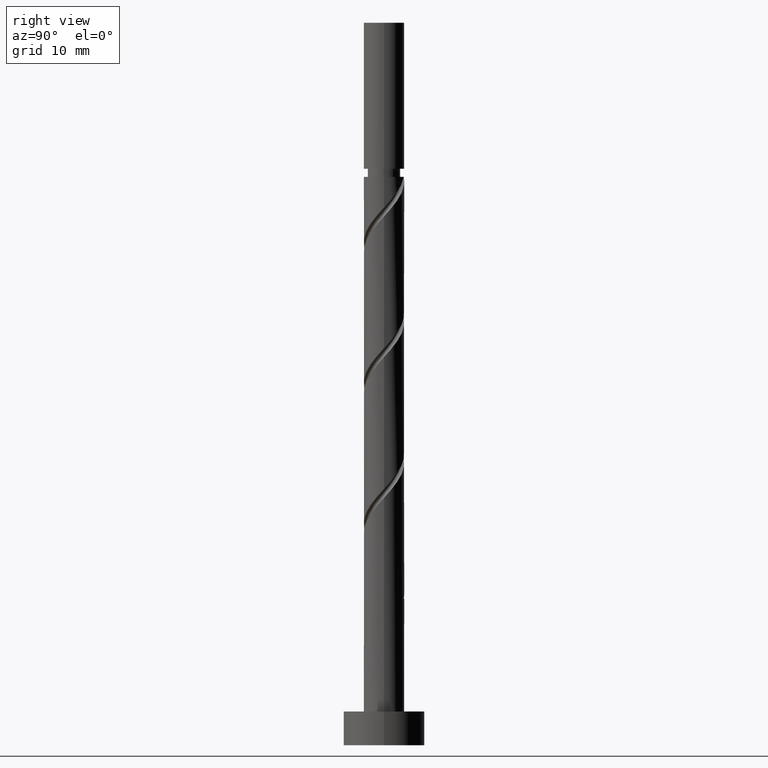
[diagram: clean part render]
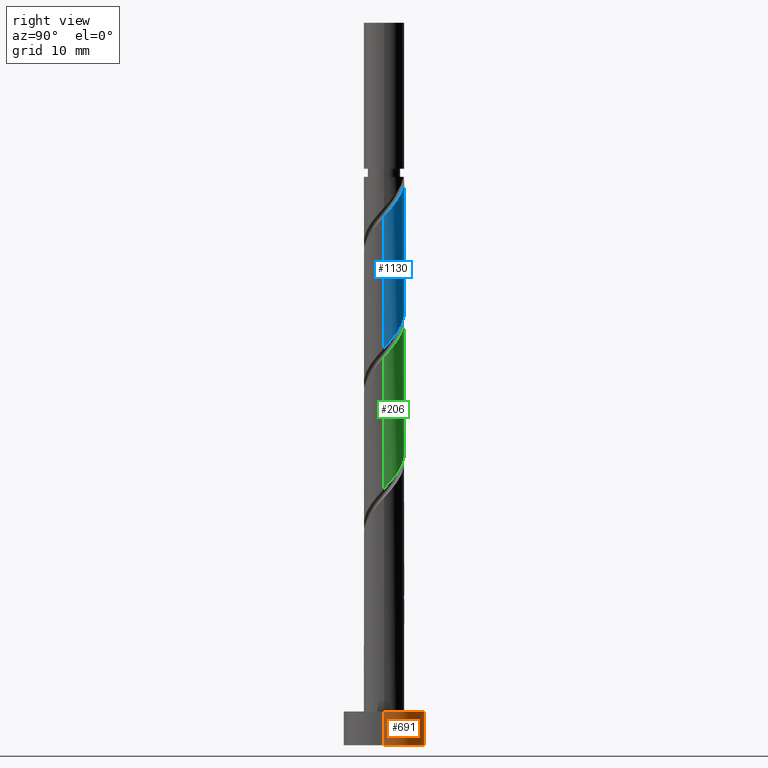
[diagram: same view with three faces highlighted in distinct colors, each labeled with its STEP entity id]
A machine part, right view with three faces highlighted in distinct colors.
Their STEP definitions:

[orange] entity #691 — the highlighted cylindrical surface (partial cylindrical patch) has radius 6 mm, axis along (-0, -0, -1).
#32 = ORIENTED_EDGE ( 'NONE', *, *, #1209, .F. ) ;
#123 = VERTEX_POINT ( 'NONE', #993 ) ;
#128 = DIRECTION ( 'NONE',  ( -1.000000000000000000, 0.000000000000000000, 0.000000000000000000 ) ) ;
#138 = DIRECTION ( 'NONE',  ( -0.000000000000000000, -0.000000000000000000, -1.000000000000000000 ) ) ;
#141 = FACE_OUTER_BOUND ( 'NONE', #1225, .T. ) ;
#371 = CIRCLE ( 'NONE', #1161, 6.000000000000000888 ) ;
#383 = DIRECTION ( 'NONE',  ( -0.000000000000000000, -0.000000000000000000, -1.000000000000000000 ) ) ;
#399 = AXIS2_PLACEMENT_3D ( 'NONE', #837, #830, #1430 ) ;
#428 = VECTOR ( 'NONE', #138, 1000.000000000000000 ) ;
#455 = DIRECTION ( 'NONE',  ( 0.000000000000000000, 0.000000000000000000, 1.000000000000000000 ) ) ;
#480 = AXIS2_PLACEMENT_3D ( 'NONE', #1223, #1002, #128 ) ;
#502 = ORIENTED_EDGE ( 'NONE', *, *, #1162, .T. ) ;
#553 = EDGE_CURVE ( 'NONE', #720, #123, #371, .T. ) ;
#586 = EDGE_CURVE ( 'NONE', #980, #949, #1031, .T. ) ;
#593 = CARTESIAN_POINT ( 'NONE',  ( 0.000000000000000000, 0.000000000000000000, 0.000000000000000000 ) ) ;
#619 = CARTESIAN_POINT ( 'NONE',  ( 6.000000000000000888, 7.347880794884120722E-16, 5.000000000000000000 ) ) ;
#691 = ADVANCED_FACE ( 'NONE', ( #141 ), #871, .T. ) ;
#710 = VECTOR ( 'NONE', #383, 1000.000000000000000 ) ;
#720 = VERTEX_POINT ( 'NONE', #1358 ) ;
#755 = CARTESIAN_POINT ( 'NONE',  ( -6.000000000000000888, 0.000000000000000000, 5.000000000000000000 ) ) ;
#830 = DIRECTION ( 'NONE',  ( 0.000000000000000000, 0.000000000000000000, 1.000000000000000000 ) ) ;
#837 = CARTESIAN_POINT ( 'NONE',  ( 0.000000000000000000, 0.000000000000000000, 5.000000000000000000 ) ) ;
#871 = CYLINDRICAL_SURFACE ( 'NONE', #480, 6.000000000000000888 ) ;
#889 = ORIENTED_EDGE ( 'NONE', *, *, #553, .T. ) ;
#949 = VERTEX_POINT ( 'NONE', #1057 ) ;
#980 = VERTEX_POINT ( 'NONE', #1072 ) ;
#993 = CARTESIAN_POINT ( 'NONE',  ( -6.000000000000000888, 0.000000000000000000, 0.000000000000000000 ) ) ;
#1002 = DIRECTION ( 'NONE',  ( -0.000000000000000000, -0.000000000000000000, -1.000000000000000000 ) ) ;
#1031 = CIRCLE ( 'NONE', #399, 6.000000000000000888 ) ;
#1057 = CARTESIAN_POINT ( 'NONE',  ( -6.000000000000000888, 0.000000000000000000, 5.000000000000000000 ) ) ;
#1072 = CARTESIAN_POINT ( 'NONE',  ( 6.000000000000000888, 7.347880794884120722E-16, 5.000000000000000000 ) ) ;
#1161 = AXIS2_PLACEMENT_3D ( 'NONE', #593, #455, #1174 ) ;
#1162 = EDGE_CURVE ( 'NONE', #980, #720, #1219, .T. ) ;
#1174 = DIRECTION ( 'NONE',  ( 1.000000000000000000, 0.000000000000000000, 0.000000000000000000 ) ) ;
#1209 = EDGE_CURVE ( 'NONE', #949, #123, #1573, .T. ) ;
#1219 = LINE ( 'NONE', #619, #710 ) ;
#1223 = CARTESIAN_POINT ( 'NONE',  ( 0.000000000000000000, 0.000000000000000000, 5.000000000000000000 ) ) ;
#1225 = EDGE_LOOP ( 'NONE', ( #1473, #502, #889, #32 ) ) ;
#1358 = CARTESIAN_POINT ( 'NONE',  ( 6.000000000000000888, 7.347880794884120722E-16, 0.000000000000000000 ) ) ;
#1430 = DIRECTION ( 'NONE',  ( 1.000000000000000000, 0.000000000000000000, 0.000000000000000000 ) ) ;
#1473 = ORIENTED_EDGE ( 'NONE', *, *, #586, .F. ) ;
#1573 = LINE ( 'NONE', #755, #428 ) ;

[blue] entity #1130 — the highlighted cylindrical surface (edge-blend (fillet) strip) has radius 3 mm, axis along (-0, -0, -1).
#54 = CARTESIAN_POINT ( 'NONE',  ( -3.000000000000000444, 1.079503400390826017E-15, 69.22421460691475659 ) ) ;
#65 = CARTESIAN_POINT ( 'NONE',  ( -0.3407363920471073171, 2.980586974261064004, 64.39274549877784182 ) ) ;
#121 = LINE ( 'NONE', #1105, #1467 ) ;
#186 = ORIENTED_EDGE ( 'NONE', *, *, #764, .F. ) ;
#190 = CARTESIAN_POINT ( 'NONE',  ( 1.062642716818108735, 2.845445682986353475, 62.83024549877784182 ) ) ;
#200 = CARTESIAN_POINT ( 'NONE',  ( 2.980586974261064004, 0.3407363920471067065, 59.18441216544452033 ) ) ;
#216 = ORIENTED_EDGE ( 'NONE', *, *, #403, .T. ) ;
#225 = CARTESIAN_POINT ( 'NONE',  ( 1.889924352937060625, 2.377805000122525492, 61.78857883211117752 ) ) ;
#241 = VECTOR ( 'NONE', #320, 1000.000000000000000 ) ;
#243 = CARTESIAN_POINT ( 'NONE',  ( -0.5969924622639978251, 2.940000000000003499, 84.18441216544452743 ) ) ;
#257 = DIRECTION ( 'NONE',  ( -1.000000000000000000, 0.000000000000000000, 0.000000000000000000 ) ) ;
#273 =( BOUNDED_CURVE ( )  B_SPLINE_CURVE ( 2, ( #649, #397, #659, #668, #503, #530, #407, #1375, #389, #981, #1144, #892, #1236 ),
 .UNSPECIFIED., .F., .T. ) 
 B_SPLINE_CURVE_WITH_KNOTS ( ( 3, 2, 2, 2, 2, 2, 3 ),
 ( 0.6795322023138552492, 0.6875000000000000000, 0.6999999999999999556, 0.7125000000000000222, 0.7249999999999999778, 0.7375000000000000444, 0.7500000000000000000 ),
 .UNSPECIFIED. ) 
 CURVE ( )  GEOMETRIC_REPRESENTATION_ITEM ( )  RATIONAL_B_SPLINE_CURVE ( ( 0.9039174447099345144, 0.9019565955404640345, 0.9090909090909122803, 0.8978984914501284553, 0.9090909090909122803, 0.8978984914501284553, 0.9090909090909122803, 0.8978984914501284553, 0.9090909090909122803, 0.8978984914501284553, 0.9090909090909122803, 0.8978984914501284553, 0.9090909090909122803 ) ) 
 REPRESENTATION_ITEM ( '' )  );
#307 = CARTESIAN_POINT ( 'NONE',  ( -2.027606598413813188, 2.211065689225168995, 66.47607883211118462 ) ) ;
#311 = CARTESIAN_POINT ( 'NONE',  ( 3.000000000000000444, 3.673940397442060361E-16, 107.0000000000000000 ) ) ;
#320 = DIRECTION ( 'NONE',  ( -0.000000000000000000, -0.000000000000000000, -1.000000000000000000 ) ) ;
#325 = CARTESIAN_POINT ( 'NONE',  ( 2.926619631508481145, 0.8128149918040482591, 59.70524549877786313 ) ) ;
#343 = CARTESIAN_POINT ( 'NONE',  ( 3.000000000000004441, -1.949103361816755091E-16, 78.31127639064091284 ) ) ;
#356 = CARTESIAN_POINT ( 'NONE',  ( 2.729413328510879921, 1.245111594254573628, 60.22607883211118462 ) ) ;
#375 = FACE_OUTER_BOUND ( 'NONE', #1216, .T. ) ;
#389 = CARTESIAN_POINT ( 'NONE',  ( 1.245111594254577403, 2.729413328510882142, 82.10107883211115620 ) ) ;
#397 = CARTESIAN_POINT ( 'NONE',  ( 3.000000000000003553, 0.3015113445777636292, 78.64558096604875459 ) ) ;
#403 = EDGE_CURVE ( 'NONE', #996, #1438, #1505, .T. ) ;
#407 = CARTESIAN_POINT ( 'NONE',  ( 2.027606598413816297, 2.211065689225171216, 81.05941216544451322 ) ) ;
#410 = CARTESIAN_POINT ( 'NONE',  ( -2.940000000000000835, 0.5969924622639712908, 68.55941216544451322 ) ) ;
#431 = VERTEX_POINT ( 'NONE', #54 ) ;
#435 = CARTESIAN_POINT ( 'NONE',  ( -2.611625341554440372, 1.476283534877584236, 67.51774549877785603 ) ) ;
#444 = CARTESIAN_POINT ( 'NONE',  ( -0.8128149918040488142, 2.926619631508481145, 64.91357883211117041 ) ) ;
#484 = CARTESIAN_POINT ( 'NONE',  ( 2.211065689225169884, 2.027606598413812744, 61.26774549877784182 ) ) ;
#503 = CARTESIAN_POINT ( 'NONE',  ( 2.611625341554445257, 1.476283534877585346, 80.01774549877782761 ) ) ;
#524 = CARTESIAN_POINT ( 'NONE',  ( 3.000000000000000888, -2.923655042725154281E-15, 58.80754794024812071 ) ) ;
#530 = CARTESIAN_POINT ( 'NONE',  ( 2.377805000122529933, 1.889924352937061514, 80.53857883211115620 ) ) ;
#556 = CARTESIAN_POINT ( 'NONE',  ( -2.377805000122525492, 1.889924352937059959, 66.99691216544449901 ) ) ;
#567 = ORIENTED_EDGE ( 'NONE', *, *, #851, .T. ) ;
#626 = DIRECTION ( 'NONE',  ( -0.000000000000000000, -0.000000000000000000, -1.000000000000000000 ) ) ;
#649 = CARTESIAN_POINT ( 'NONE',  ( 3.000000000000004441, -1.949103361816755091E-16, 78.31127639064091284 ) ) ;
#659 = CARTESIAN_POINT ( 'NONE',  ( 2.940000000000004388, 0.5969924622639708467, 78.97607883211115620 ) ) ;
#668 = CARTESIAN_POINT ( 'NONE',  ( 2.845445682986358804, 1.062642716818108291, 79.49691216544447059 ) ) ;
#677 = CARTESIAN_POINT ( 'NONE',  ( -3.000000000000000000, 0.3015113445777659607, 68.88991003150691483 ) ) ;
#718 = DIRECTION ( 'NONE',  ( -1.000000000000000000, 0.000000000000000000, 0.000000000000000000 ) ) ;
#764 = EDGE_CURVE ( 'NONE', #987, #431, #121, .T. ) ;
#812 = CARTESIAN_POINT ( 'NONE',  ( 0.1313422077098344298, 3.034554317013646862, 63.87191216544452033 ) ) ;
#851 = EDGE_CURVE ( 'NONE', #987, #1234, #1008, .T. ) ;
#892 = CARTESIAN_POINT ( 'NONE',  ( -0.1313422077098332919, 3.034554317013650415, 83.66357883211114199 ) ) ;
#895 = CARTESIAN_POINT ( 'NONE',  ( -1.677408196705099552, 2.532207025513277365, 65.95524549877784182 ) ) ;
#932 = CARTESIAN_POINT ( 'NONE',  ( 1.476283534877585124, 2.611625341554440372, 62.30941216544452033 ) ) ;
#934 = CARTESIAN_POINT ( 'NONE',  ( -3.000000000000002665, 0.000000000000000000, 84.18441216544449901 ) ) ;
#966 = CARTESIAN_POINT ( 'NONE',  ( 3.000000000000000888, -2.923655042725154281E-15, 58.80754794024812071 ) ) ;
#981 = CARTESIAN_POINT ( 'NONE',  ( 0.8128149918040510347, 2.926619631508484254, 82.62191216544449901 ) ) ;
#983 = CARTESIAN_POINT ( 'NONE',  ( 0.000000000000000000, 0.000000000000000000, 107.0000000000000000 ) ) ;
#987 = VERTEX_POINT ( 'NONE', #934 ) ;
#996 = VERTEX_POINT ( 'NONE', #343 ) ;
#999 = CARTESIAN_POINT ( 'NONE',  ( 3.000000000000000888, 0.1709212123392973848, 58.99705902945539293 ) ) ;
#1008 = CIRCLE ( 'NONE', #1210, 3.000000000000002665 ) ;
#1105 = CARTESIAN_POINT ( 'NONE',  ( -3.000000000000000444, 0.000000000000000000, 107.0000000000000000 ) ) ;
#1130 = ADVANCED_FACE ( 'NONE', ( #375 ), #1229, .T. ) ;
#1144 = CARTESIAN_POINT ( 'NONE',  ( 0.3407363920471088714, 2.980586974261068001, 83.14274549877781340 ) ) ;
#1155 = CARTESIAN_POINT ( 'NONE',  ( -2.845445682986353919, 1.062642716818108291, 68.03857883211118462 ) ) ;
#1164 = CARTESIAN_POINT ( 'NONE',  ( -1.245111594254574516, 2.729413328510879477, 65.43441216544449901 ) ) ;
#1173 = ORIENTED_EDGE ( 'NONE', *, *, #1571, .F. ) ;
#1210 = AXIS2_PLACEMENT_3D ( 'NONE', #1437, #1452, #718 ) ;
#1216 = EDGE_LOOP ( 'NONE', ( #1257, #216, #1173, #186, #567 ) ) ;
#1229 = CYLINDRICAL_SURFACE ( 'NONE', #1420, 3.000000000000000444 ) ;
#1234 = VERTEX_POINT ( 'NONE', #243 ) ;
#1236 = CARTESIAN_POINT ( 'NONE',  ( -0.5969924622639978251, 2.940000000000003944, 84.18441216544452743 ) ) ;
#1257 = ORIENTED_EDGE ( 'NONE', *, *, #1282, .F. ) ;
#1282 = EDGE_CURVE ( 'NONE', #996, #1234, #273, .T. ) ;
#1351 = DIRECTION ( 'NONE',  ( -0.000000000000000000, -0.000000000000000000, -1.000000000000000000 ) ) ;
#1375 = CARTESIAN_POINT ( 'NONE',  ( 1.677408196705102439, 2.532207025513280030, 81.58024549877781340 ) ) ;
#1414 = CARTESIAN_POINT ( 'NONE',  ( 0.5969924622639719569, 2.940000000000000835, 63.35107883211119173 ) ) ;
#1420 = AXIS2_PLACEMENT_3D ( 'NONE', #983, #626, #257 ) ;
#1437 = CARTESIAN_POINT ( 'NONE',  ( 0.000000000000000000, 0.000000000000000000, 84.18441216544449901 ) ) ;
#1438 = VERTEX_POINT ( 'NONE', #524 ) ;
#1450 = CARTESIAN_POINT ( 'NONE',  ( 2.532207025513277365, 1.677408196705098442, 60.74691216544452033 ) ) ;
#1452 = DIRECTION ( 'NONE',  ( -0.000000000000000000, -0.000000000000000000, -1.000000000000000000 ) ) ;
#1458 =( BOUNDED_CURVE ( )  B_SPLINE_CURVE ( 2, ( #1461, #677, #410, #1155, #435, #556, #307, #895, #1164, #444, #65, #812, #1414, #190, #932, #225, #484, #1450, #356, #325, #200, #999, #966 ),
 .UNSPECIFIED., .F., .T. ) 
 B_SPLINE_CURVE_WITH_KNOTS ( ( 3, 2, 2, 2, 2, 2, 2, 2, 2, 2, 2, 3 ),
 ( 0.4295322023138552492, 0.4375000000000000000, 0.4500000000000000111, 0.4625000000000000222, 0.4749999999999999778, 0.4874999999999999889, 0.5000000000000000000, 0.5124999999999999556, 0.5250000000000000222, 0.5374999999999999778, 0.5500000000000000444, 0.5545322023138552492 ),
 .UNSPECIFIED. ) 
 CURVE ( )  GEOMETRIC_REPRESENTATION_ITEM ( )  RATIONAL_B_SPLINE_CURVE ( ( 0.9039174447099282972, 0.9019565955404577062, 0.9090909090909058410, 0.8978984914501221271, 0.9090909090909058410, 0.8978984914501221271, 0.9090909090909058410, 0.8978984914501221271, 0.9090909090909058410, 0.8978984914501221271, 0.9090909090909058410, 0.8978984914501221271, 0.9090909090909058410, 0.8978984914501221271, 0.9090909090909058410, 0.8978984914501221271, 0.9090909090909058410, 0.8978984914501221271, 0.9090909090909058410, 0.8978984914501221271, 0.9090909090909058410, 0.9050328050005702618, 0.9039174447099280751 ) ) 
 REPRESENTATION_ITEM ( '' )  );
#1461 = CARTESIAN_POINT ( 'NONE',  ( -3.000000000000000444, 1.079503400390826017E-15, 69.22421460691475659 ) ) ;
#1467 = VECTOR ( 'NONE', #1351, 1000.000000000000000 ) ;
#1505 = LINE ( 'NONE', #311, #241 ) ;
#1571 = EDGE_CURVE ( 'NONE', #431, #1438, #1458, .T. ) ;

[green] entity #206 — the highlighted cylindrical surface (edge-blend (fillet) strip) has radius 3 mm, axis along (-0, -0, -1).
#10 = CARTESIAN_POINT ( 'NONE',  ( -3.000000000000000888, 2.623792987061035822E-15, 48.39088127358144220 ) ) ;
#40 =( BOUNDED_CURVE ( )  B_SPLINE_CURVE ( 2, ( #305, #800, #1527, #441, #1290, #690, #73, #737, #479, #616, #1456, #1345, #231, #1183, #719, #251, #139, #1494, #1248, #1368, #1131, #1379, #861 ),
 .UNSPECIFIED., .F., .T. ) 
 B_SPLINE_CURVE_WITH_KNOTS ( ( 3, 2, 2, 2, 2, 2, 2, 2, 2, 2, 2, 3 ),
 ( 0.4295322023138553602, 0.4375000000000000000, 0.4499999999999999556, 0.4625000000000000222, 0.4749999999999999778, 0.4875000000000000444, 0.5000000000000000000, 0.5124999999999999556, 0.5250000000000000222, 0.5374999999999999778, 0.5500000000000000444, 0.5545322023138551382 ),
 .UNSPECIFIED. ) 
 CURVE ( )  GEOMETRIC_REPRESENTATION_ITEM ( )  RATIONAL_B_SPLINE_CURVE ( ( 0.9039174447099345144, 0.9019565955404640345, 0.9090909090909122803, 0.8978984914501284553, 0.9090909090909122803, 0.8978984914501284553, 0.9090909090909122803, 0.8978984914501284553, 0.9090909090909122803, 0.8978984914501284553, 0.9090909090909122803, 0.8978984914501284553, 0.9090909090909122803, 0.8978984914501284553, 0.9090909090909122803, 0.8978984914501284553, 0.9090909090909122803, 0.8978984914501284553, 0.9090909090909122803, 0.8978984914501284553, 0.9090909090909122803, 0.9050328050005768121, 0.9039174447099345144 ) ) 
 REPRESENTATION_ITEM ( '' )  );
#62 = CARTESIAN_POINT ( 'NONE',  ( -2.027606598413813188, 2.211065689225168995, 45.64274549877783471 ) ) ;
#71 = CARTESIAN_POINT ( 'NONE',  ( 2.211065689225169884, 2.027606598413812744, 40.43441216544452033 ) ) ;
#73 = CARTESIAN_POINT ( 'NONE',  ( 2.027606598413816297, 2.211065689225171216, 60.22607883211117752 ) ) ;
#88 = DIRECTION ( 'NONE',  ( -0.000000000000000000, -0.000000000000000000, -1.000000000000000000 ) ) ;
#95 = DIRECTION ( 'NONE',  ( -1.000000000000000000, 0.000000000000000000, 0.000000000000000000 ) ) ;
#139 = CARTESIAN_POINT ( 'NONE',  ( -2.211065689225171660, 2.027606598413815853, 65.43441216544448480 ) ) ;
#178 = VERTEX_POINT ( 'NONE', #977 ) ;
#198 = CYLINDRICAL_SURFACE ( 'NONE', #1419, 3.000000000000000444 ) ;
#206 = ADVANCED_FACE ( 'NONE', ( #818 ), #198, .T. ) ;
#226 = EDGE_CURVE ( 'NONE', #1382, #1119, #1448, .T. ) ;
#231 = CARTESIAN_POINT ( 'NONE',  ( -0.5969924622639705136, 2.940000000000004388, 63.35107883211117752 ) ) ;
#251 = CARTESIAN_POINT ( 'NONE',  ( -1.889924352937061736, 2.377805000122529933, 64.91357883211115620 ) ) ;
#279 = ORIENTED_EDGE ( 'NONE', *, *, #226, .F. ) ;
#303 = CARTESIAN_POINT ( 'NONE',  ( 1.476283534877585124, 2.611625341554440372, 41.47607883211117041 ) ) ;
#305 = CARTESIAN_POINT ( 'NONE',  ( 3.000000000000004441, 1.349379250488523203E-15, 57.47794305730756292 ) ) ;
#336 =( BOUNDED_CURVE ( )  B_SPLINE_CURVE ( 2, ( #10, #753, #988, #1484, #447, #1168, #62, #537, #792, #560, #920, #1135, #1150, #1511, #303, #543, #71, #1411, #1399, #1391, #568, #674, #1020 ),
 .UNSPECIFIED., .F., .T. ) 
 B_SPLINE_CURVE_WITH_KNOTS ( ( 3, 2, 2, 2, 2, 2, 2, 2, 2, 2, 2, 3 ),
 ( 0.6795322023138552492, 0.6875000000000000000, 0.6999999999999999556, 0.7125000000000000222, 0.7249999999999999778, 0.7375000000000000444, 0.7500000000000000000, 0.7624999999999999556, 0.7750000000000000222, 0.7874999999999999778, 0.8000000000000000444, 0.8045322023138552492 ),
 .UNSPECIFIED. ) 
 CURVE ( )  GEOMETRIC_REPRESENTATION_ITEM ( )  RATIONAL_B_SPLINE_CURVE ( ( 0.9039174447099280751, 0.9019565955404575952, 0.9090909090909058410, 0.8978984914501221271, 0.9090909090909058410, 0.8978984914501221271, 0.9090909090909058410, 0.8978984914501221271, 0.9090909090909058410, 0.8978984914501221271, 0.9090909090909058410, 0.8978984914501221271, 0.9090909090909058410, 0.8978984914501221271, 0.9090909090909058410, 0.8978984914501221271, 0.9090909090909058410, 0.8978984914501221271, 0.9090909090909058410, 0.8978984914501221271, 0.9090909090909058410, 0.9050328050005702618, 0.9039174447099280751 ) ) 
 REPRESENTATION_ITEM ( '' )  );
#364 = EDGE_CURVE ( 'NONE', #1119, #178, #336, .T. ) ;
#366 = CARTESIAN_POINT ( 'NONE',  ( -3.000000000000000888, 2.623792987061035822E-15, 48.39088127358144220 ) ) ;
#426 = VECTOR ( 'NONE', #88, 1000.000000000000000 ) ;
#438 = EDGE_LOOP ( 'NONE', ( #1061, #1404, #777, #279 ) ) ;
#441 = CARTESIAN_POINT ( 'NONE',  ( 2.845445682986358804, 1.062642716818108291, 58.66357883211117041 ) ) ;
#447 = CARTESIAN_POINT ( 'NONE',  ( -2.611625341554440372, 1.476283534877584236, 46.68441216544450612 ) ) ;
#453 = DIRECTION ( 'NONE',  ( -0.000000000000000000, -0.000000000000000000, -1.000000000000000000 ) ) ;
#479 = CARTESIAN_POINT ( 'NONE',  ( 1.245111594254577403, 2.729413328510882142, 61.26774549877784892 ) ) ;
#537 = CARTESIAN_POINT ( 'NONE',  ( -1.677408196705099552, 2.532207025513277365, 45.12191216544452033 ) ) ;
#543 = CARTESIAN_POINT ( 'NONE',  ( 1.889924352937060625, 2.377805000122525492, 40.95524549877784892 ) ) ;
#560 = CARTESIAN_POINT ( 'NONE',  ( -0.8128149918040488142, 2.926619631508481145, 44.08024549877784892 ) ) ;
#568 = CARTESIAN_POINT ( 'NONE',  ( 2.980586974261064004, 0.3407363920471067065, 38.35107883211119173 ) ) ;
#599 = LINE ( 'NONE', #726, #976 ) ;
#616 = CARTESIAN_POINT ( 'NONE',  ( 0.8128149918040510347, 2.926619631508484254, 61.78857883211114910 ) ) ;
#674 = CARTESIAN_POINT ( 'NONE',  ( 3.000000000000000888, 0.1709212123392973848, 38.16372569612205723 ) ) ;
#680 = VERTEX_POINT ( 'NONE', #863 ) ;
#690 = CARTESIAN_POINT ( 'NONE',  ( 2.377805000122529933, 1.889924352937061514, 59.70524549877782761 ) ) ;
#719 = CARTESIAN_POINT ( 'NONE',  ( -1.476283534877585568, 2.611625341554444368, 64.39274549877784182 ) ) ;
#726 = CARTESIAN_POINT ( 'NONE',  ( 3.000000000000000444, 3.673940397442060361E-16, 107.0000000000000000 ) ) ;
#737 = CARTESIAN_POINT ( 'NONE',  ( 1.677408196705102439, 2.532207025513280030, 60.74691216544449901 ) ) ;
#753 = CARTESIAN_POINT ( 'NONE',  ( -3.000000000000000000, 0.3015113445777645729, 48.05657669817359334 ) ) ;
#777 = ORIENTED_EDGE ( 'NONE', *, *, #364, .F. ) ;
#792 = CARTESIAN_POINT ( 'NONE',  ( -1.245111594254574516, 2.729413328510879477, 44.60107883211118462 ) ) ;
#800 = CARTESIAN_POINT ( 'NONE',  ( 3.000000000000003109, 0.3015113445777678480, 57.81224763271542599 ) ) ;
#818 = FACE_OUTER_BOUND ( 'NONE', #438, .T. ) ;
#852 = DIRECTION ( 'NONE',  ( -0.000000000000000000, -0.000000000000000000, -1.000000000000000000 ) ) ;
#861 = CARTESIAN_POINT ( 'NONE',  ( -3.000000000000004441, -1.949103361816755091E-16, 67.89460972397424143 ) ) ;
#863 = CARTESIAN_POINT ( 'NONE',  ( 3.000000000000004441, 1.349379250488523203E-15, 57.47794305730756292 ) ) ;
#920 = CARTESIAN_POINT ( 'NONE',  ( -0.3407363920471073171, 2.980586974261064004, 43.55941216544450612 ) ) ;
#939 = EDGE_CURVE ( 'NONE', #680, #178, #599, .T. ) ;
#976 = VECTOR ( 'NONE', #453, 1000.000000000000000 ) ;
#977 = CARTESIAN_POINT ( 'NONE',  ( 3.000000000000000888, -2.923655042725154281E-15, 37.97421460691478501 ) ) ;
#988 = CARTESIAN_POINT ( 'NONE',  ( -2.940000000000000835, 0.5969924622639712908, 47.72607883211117752 ) ) ;
#1020 = CARTESIAN_POINT ( 'NONE',  ( 3.000000000000000888, -2.923655042725154281E-15, 37.97421460691478501 ) ) ;
#1061 = ORIENTED_EDGE ( 'NONE', *, *, #1393, .F. ) ;
#1091 = CARTESIAN_POINT ( 'NONE',  ( 0.000000000000000000, 0.000000000000000000, 107.0000000000000000 ) ) ;
#1119 = VERTEX_POINT ( 'NONE', #366 ) ;
#1131 = CARTESIAN_POINT ( 'NONE',  ( -2.980586974261068001, 0.3407363920471082608, 67.51774549877784182 ) ) ;
#1135 = CARTESIAN_POINT ( 'NONE',  ( 0.1313422077098344298, 3.034554317013646862, 43.03857883211117752 ) ) ;
#1150 = CARTESIAN_POINT ( 'NONE',  ( 0.5969924622639719569, 2.940000000000000835, 42.51774549877784182 ) ) ;
#1168 = CARTESIAN_POINT ( 'NONE',  ( -2.377805000122525492, 1.889924352937059959, 46.16357883211119884 ) ) ;
#1183 = CARTESIAN_POINT ( 'NONE',  ( -1.062642716818108957, 2.845445682986358804, 63.87191216544450612 ) ) ;
#1217 = CARTESIAN_POINT ( 'NONE',  ( -3.000000000000000444, 0.000000000000000000, 107.0000000000000000 ) ) ;
#1248 = CARTESIAN_POINT ( 'NONE',  ( -2.729413328510883030, 1.245111594254576737, 66.47607883211115620 ) ) ;
#1290 = CARTESIAN_POINT ( 'NONE',  ( 2.611625341554445257, 1.476283534877585346, 59.18441216544449190 ) ) ;
#1345 = CARTESIAN_POINT ( 'NONE',  ( -0.1313422077098332919, 3.034554317013650415, 62.83024549877782761 ) ) ;
#1368 = CARTESIAN_POINT ( 'NONE',  ( -2.926619631508484254, 0.8128149918040501465, 66.99691216544451322 ) ) ;
#1379 = CARTESIAN_POINT ( 'NONE',  ( -3.000000000000004441, 0.1709212123393029359, 67.70509863476695500 ) ) ;
#1382 = VERTEX_POINT ( 'NONE', #1520 ) ;
#1391 = CARTESIAN_POINT ( 'NONE',  ( 2.926619631508481145, 0.8128149918040482591, 38.87191216544451322 ) ) ;
#1393 = EDGE_CURVE ( 'NONE', #680, #1382, #40, .T. ) ;
#1399 = CARTESIAN_POINT ( 'NONE',  ( 2.729413328510879921, 1.245111594254573628, 39.39274549877784892 ) ) ;
#1404 = ORIENTED_EDGE ( 'NONE', *, *, #939, .T. ) ;
#1411 = CARTESIAN_POINT ( 'NONE',  ( 2.532207025513277365, 1.677408196705098442, 39.91357883211117041 ) ) ;
#1419 = AXIS2_PLACEMENT_3D ( 'NONE', #1091, #852, #95 ) ;
#1448 = LINE ( 'NONE', #1217, #426 ) ;
#1456 = CARTESIAN_POINT ( 'NONE',  ( 0.3407363920471088714, 2.980586974261068001, 62.30941216544449190 ) ) ;
#1484 = CARTESIAN_POINT ( 'NONE',  ( -2.845445682986353919, 1.062642716818108291, 47.20524549877784892 ) ) ;
#1494 = CARTESIAN_POINT ( 'NONE',  ( -2.532207025513280474, 1.677408196705101773, 65.95524549877781340 ) ) ;
#1511 = CARTESIAN_POINT ( 'NONE',  ( 1.062642716818108735, 2.845445682986353475, 41.99691216544450612 ) ) ;
#1520 = CARTESIAN_POINT ( 'NONE',  ( -3.000000000000004441, -1.949103361816755091E-16, 67.89460972397424143 ) ) ;
#1527 = CARTESIAN_POINT ( 'NONE',  ( 2.940000000000004388, 0.5969924622639708467, 58.14274549877783471 ) ) ;